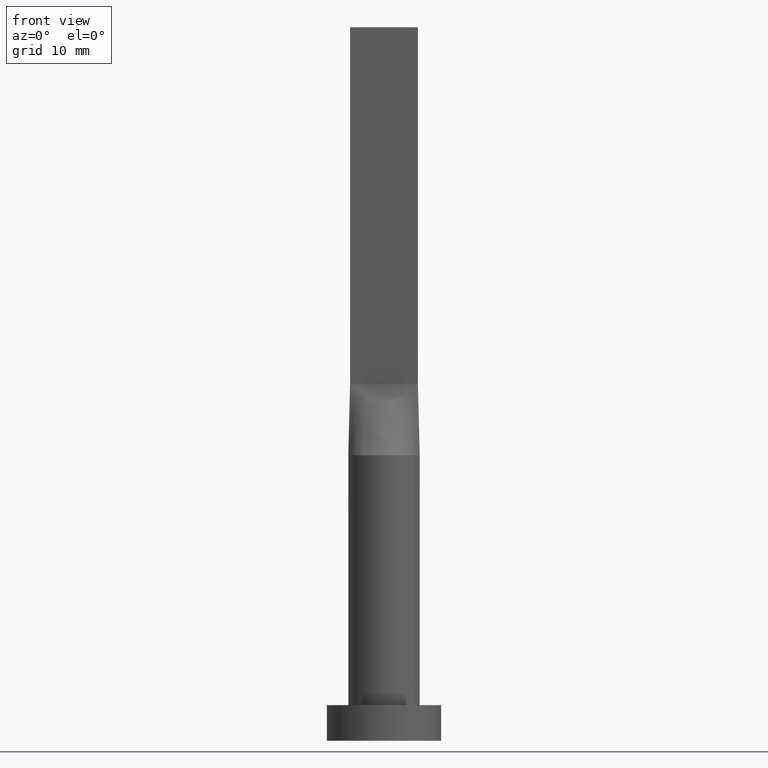
[diagram: clean part render]
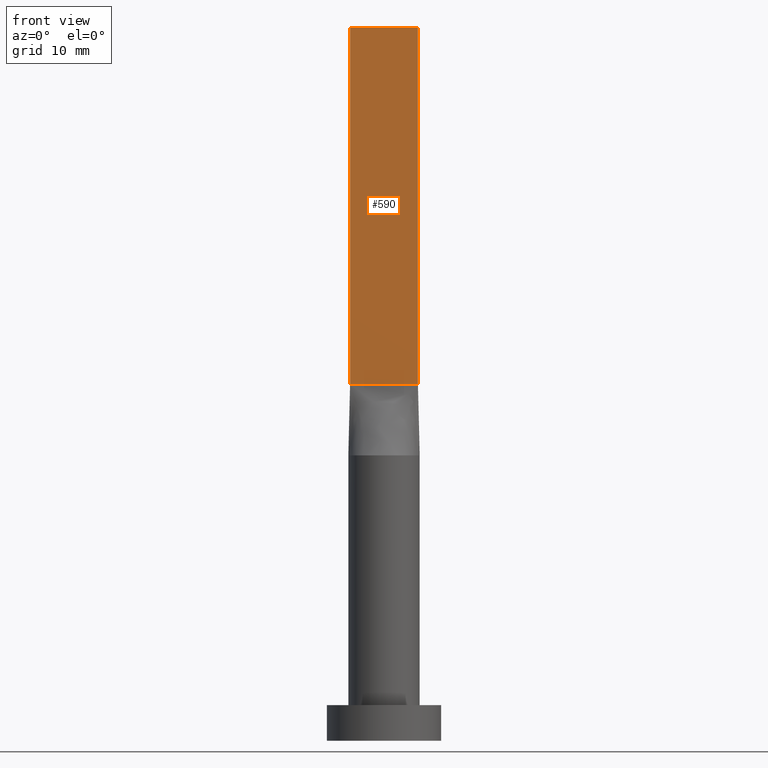
[diagram: same view with one face highlighted and labeled with its STEP entity id]
A machine part, front view. The second image highlights one B-rep face of the part: STEP entity #590.
In plain terms, the highlighted planar face has unit normal (0, 1, -0).
Its self-contained STEP definition (entity closure, byte-faithful):
#19 = VECTOR ( 'NONE', #363, 1000.000000000000000 ) ;
#26 = VERTEX_POINT ( 'NONE', #459 ) ;
#33 = CARTESIAN_POINT ( 'NONE',  ( 4.750000000000000000, -0.9999999999999997780, 100.0000000000000000 ) ) ;
#41 = LINE ( 'NONE', #327, #19 ) ;
#46 = EDGE_CURVE ( 'NONE', #26, #179, #275, .T. ) ;
#69 = DIRECTION ( 'NONE',  ( -1.000000000000000000, 6.847592668329501559E-17, 0.000000000000000000 ) ) ;
#78 = VERTEX_POINT ( 'NONE', #181 ) ;
#85 = DIRECTION ( 'NONE',  ( -0.000000000000000000, -0.000000000000000000, -1.000000000000000000 ) ) ;
#110 = DIRECTION ( 'NONE',  ( 6.847592668329501559E-17, 1.000000000000000000, -0.000000000000000000 ) ) ;
#115 = CARTESIAN_POINT ( 'NONE',  ( -4.750000000000000000, -0.9999999999999991118, 100.0000000000000000 ) ) ;
#120 = DIRECTION ( 'NONE',  ( -0.000000000000000000, -0.000000000000000000, -1.000000000000000000 ) ) ;
#160 = LINE ( 'NONE', #115, #465 ) ;
#165 = FACE_OUTER_BOUND ( 'NONE', #271, .T. ) ;
#173 = VECTOR ( 'NONE', #120, 1000.000000000000000 ) ;
#179 = VERTEX_POINT ( 'NONE', #339 ) ;
#181 = CARTESIAN_POINT ( 'NONE',  ( -4.750000000000000000, -0.9999999999999991118, 100.0000000000000000 ) ) ;
#206 = LINE ( 'NONE', #388, #173 ) ;
#225 = CARTESIAN_POINT ( 'NONE',  ( -4.750000000000000000, -0.9999999999999991118, 50.00000000000000000 ) ) ;
#234 = EDGE_CURVE ( 'NONE', #446, #179, #41, .T. ) ;
#261 = ORIENTED_EDGE ( 'NONE', *, *, #46, .F. ) ;
#271 = EDGE_LOOP ( 'NONE', ( #476, #261, #587, #361 ) ) ;
#275 = LINE ( 'NONE', #33, #542 ) ;
#277 = EDGE_CURVE ( 'NONE', #78, #26, #160, .T. ) ;
#284 = AXIS2_PLACEMENT_3D ( 'NONE', #387, #110, #69 ) ;
#303 = DIRECTION ( 'NONE',  ( 1.000000000000000000, -6.847592668329501559E-17, 0.000000000000000000 ) ) ;
#327 = CARTESIAN_POINT ( 'NONE',  ( -4.750000000000000000, -0.9999999999999991118, 50.00000000000000000 ) ) ;
#339 = CARTESIAN_POINT ( 'NONE',  ( 4.750000000000000000, -0.9999999999999997780, 50.00000000000000000 ) ) ;
#361 = ORIENTED_EDGE ( 'NONE', *, *, #425, .T. ) ;
#363 = DIRECTION ( 'NONE',  ( 1.000000000000000000, -6.847592668329501559E-17, 0.000000000000000000 ) ) ;
#387 = CARTESIAN_POINT ( 'NONE',  ( -4.750000000000000000, -0.9999999999999991118, 100.0000000000000000 ) ) ;
#388 = CARTESIAN_POINT ( 'NONE',  ( -4.750000000000000000, -0.9999999999999991118, 100.0000000000000000 ) ) ;
#425 = EDGE_CURVE ( 'NONE', #78, #446, #206, .T. ) ;
#434 = PLANE ( 'NONE',  #284 ) ;
#446 = VERTEX_POINT ( 'NONE', #225 ) ;
#459 = CARTESIAN_POINT ( 'NONE',  ( 4.750000000000000000, -0.9999999999999997780, 100.0000000000000000 ) ) ;
#465 = VECTOR ( 'NONE', #303, 1000.000000000000000 ) ;
#476 = ORIENTED_EDGE ( 'NONE', *, *, #234, .T. ) ;
#542 = VECTOR ( 'NONE', #85, 1000.000000000000000 ) ;
#587 = ORIENTED_EDGE ( 'NONE', *, *, #277, .F. ) ;
#590 = ADVANCED_FACE ( 'NONE', ( #165 ), #434, .F. ) ;